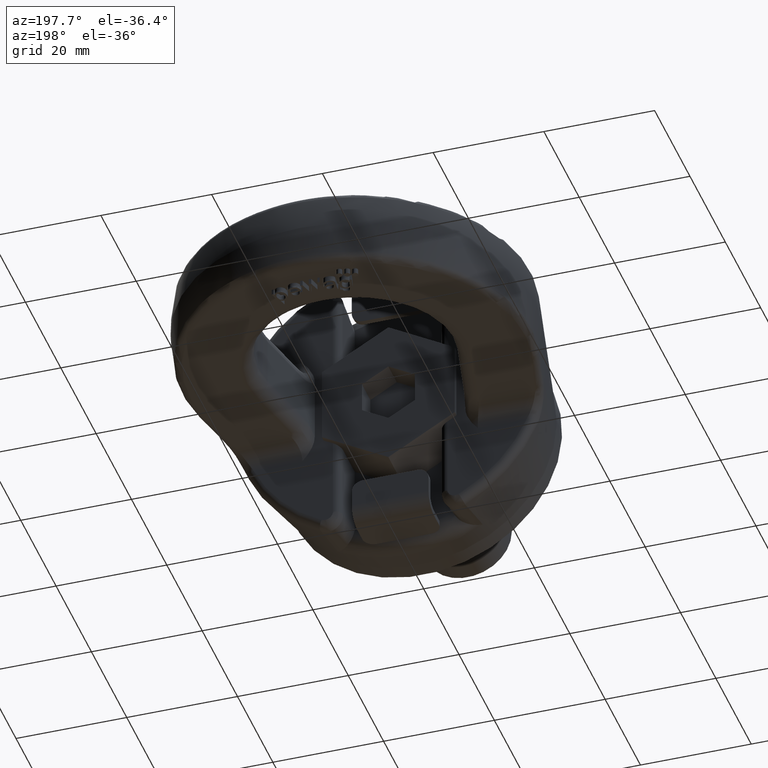
[diagram: clean part render]
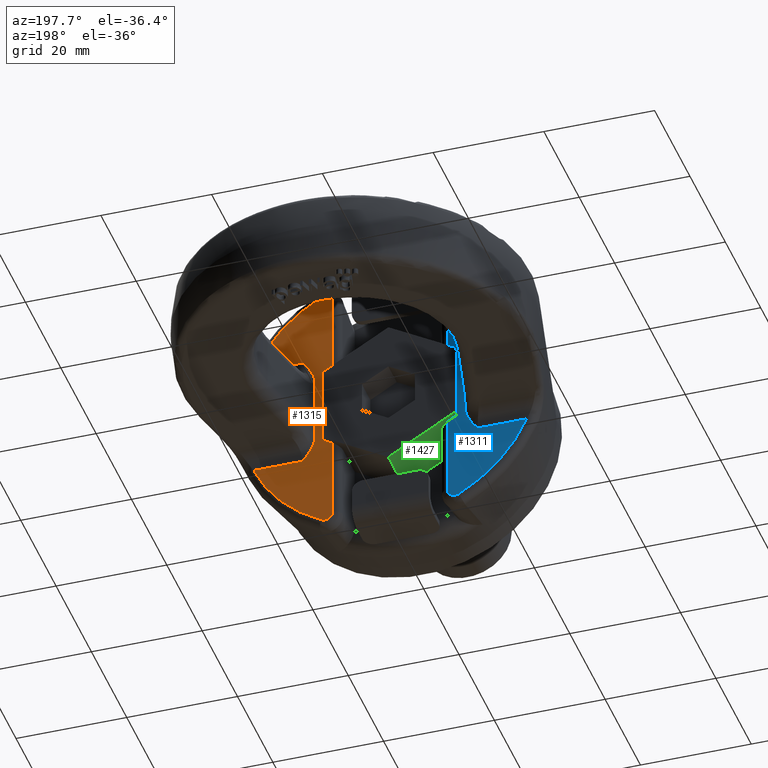
[diagram: same view with three faces highlighted in distinct colors, each labeled with its STEP entity id]
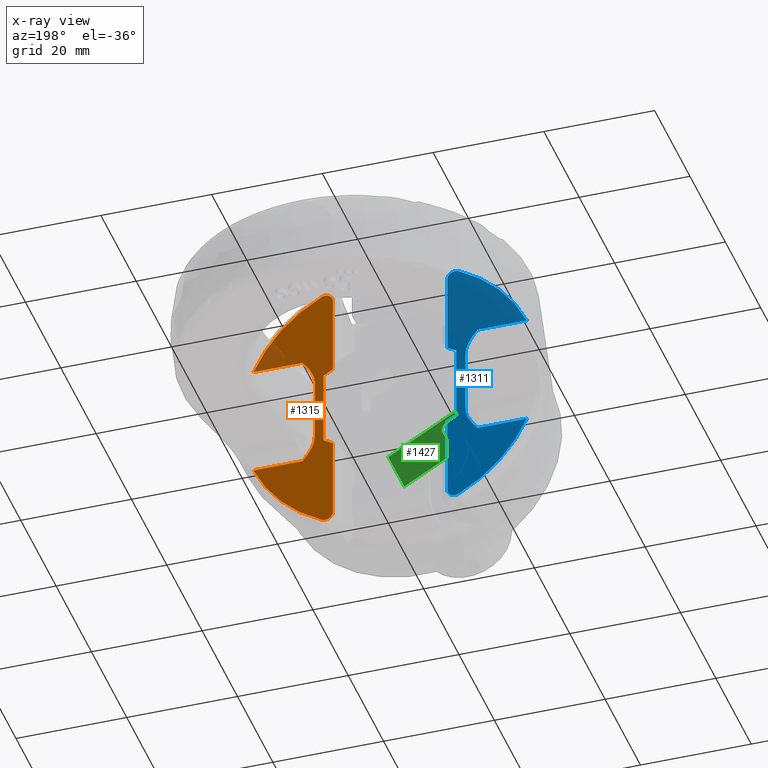
[diagram: x-ray of the same camera — body ghosted, the three highlighted faces saturated]
A machine part, auxiliary view with three faces highlighted in distinct colors.
The next image is the same camera in x-ray (body ghosted, the three faces saturated) — at least one of them is partly hidden behind the body in this view.
Their STEP definitions:

[orange] entity #1315 — the highlighted planar face has unit normal (0, 1, 0).
#1095=FACE_OUTER_BOUND('',#1827,.T.);
#1315=ADVANCED_FACE('',(#1095),#1554,.T.);
#1554=PLANE('',#5133);
#1674=CIRCLE('',#5131,26.8117324217931);
#1675=CIRCLE('',#5132,26.8117324217931);
#1827=EDGE_LOOP('',(#2796,#2797,#2798,#2799,#2800,#2801,#2802,#2803,#2804,
#2805,#2806,#2807,#2808,#2809));
#2141=LINE('',#6673,#2421);
#2142=LINE('',#6676,#2422);
#2143=LINE('',#6700,#2423);
#2144=LINE('',#6707,#2424);
#2145=LINE('',#6714,#2425);
#2146=LINE('',#6741,#2426);
#2147=LINE('',#6743,#2427);
#2148=LINE('',#6745,#2428);
#2421=VECTOR('',#5467,1.);
#2422=VECTOR('',#5468,1.);
#2423=VECTOR('',#5471,1.);
#2424=VECTOR('',#5472,1.);
#2425=VECTOR('',#5473,1.);
#2426=VECTOR('',#5476,1.);
#2427=VECTOR('',#5477,1.);
#2428=VECTOR('',#5478,1.);
#2796=ORIENTED_EDGE('',*,*,#4358,.T.);
#2797=ORIENTED_EDGE('',*,*,#4359,.T.);
#2798=ORIENTED_EDGE('',*,*,#4360,.T.);
#2799=ORIENTED_EDGE('',*,*,#4361,.T.);
#2800=ORIENTED_EDGE('',*,*,#4362,.T.);
#2801=ORIENTED_EDGE('',*,*,#4363,.T.);
#2802=ORIENTED_EDGE('',*,*,#4364,.F.);
#2803=ORIENTED_EDGE('',*,*,#4365,.T.);
#2804=ORIENTED_EDGE('',*,*,#4366,.T.);
#2805=ORIENTED_EDGE('',*,*,#4367,.T.);
#2806=ORIENTED_EDGE('',*,*,#4368,.T.);
#2807=ORIENTED_EDGE('',*,*,#4369,.T.);
#2808=ORIENTED_EDGE('',*,*,#4370,.T.);
#2809=ORIENTED_EDGE('',*,*,#4371,.T.);
#3968=VERTEX_POINT('',#6674);
#3969=VERTEX_POINT('',#6675);
#3970=VERTEX_POINT('',#6677);
#3971=VERTEX_POINT('',#6697);
#3972=VERTEX_POINT('',#6699);
#3973=VERTEX_POINT('',#6701);
#3974=VERTEX_POINT('',#6706);
#3975=VERTEX_POINT('',#6708);
#3976=VERTEX_POINT('',#6713);
#3977=VERTEX_POINT('',#6715);
#3978=VERTEX_POINT('',#6717);
#3979=VERTEX_POINT('',#6740);
#3980=VERTEX_POINT('',#6742);
#3981=VERTEX_POINT('',#6744);
#4358=EDGE_CURVE('',#3968,#3969,#2141,.T.);
#4359=EDGE_CURVE('',#3969,#3970,#2142,.T.);
#4360=EDGE_CURVE('',#3970,#3971,#4883,.T.);
#4361=EDGE_CURVE('',#3971,#3972,#1674,.T.);
#4362=EDGE_CURVE('',#3972,#3973,#2143,.T.);
#4363=EDGE_CURVE('',#3973,#3974,#4884,.T.);
#4364=EDGE_CURVE('',#3975,#3974,#2144,.T.);
#4365=EDGE_CURVE('',#3975,#3976,#4885,.T.);
#4366=EDGE_CURVE('',#3976,#3977,#2145,.T.);
#4367=EDGE_CURVE('',#3977,#3978,#1675,.T.);
#4368=EDGE_CURVE('',#3978,#3979,#4886,.T.);
#4369=EDGE_CURVE('',#3979,#3980,#2146,.T.);
#4370=EDGE_CURVE('',#3980,#3981,#2147,.T.);
#4371=EDGE_CURVE('',#3981,#3968,#2148,.T.);
#4883=B_SPLINE_CURVE_WITH_KNOTS('',3,(#6678,#6679,#6680,#6681,#6682,#6683,
#6684,#6685,#6686,#6687,#6688,#6689,#6690,#6691,#6692,#6693,#6694,#6695,
#6696),.UNSPECIFIED.,.F.,.F.,(4,3,3,3,3,3,4),(0.,0.172576338226563,0.34530578615506,
0.515492630800685,0.680616550204324,0.841230456372044,1.),.UNSPECIFIED.);
#4884=B_SPLINE_CURVE_WITH_KNOTS('',3,(#6702,#6703,#6704,#6705),
 .UNSPECIFIED.,.F.,.F.,(4,4),(0.,1.),.UNSPECIFIED.);
#4885=B_SPLINE_CURVE_WITH_KNOTS('',3,(#6709,#6710,#6711,#6712),
 .UNSPECIFIED.,.F.,.F.,(4,4),(0.,1.),.UNSPECIFIED.);
#4886=B_SPLINE_CURVE_WITH_KNOTS('',3,(#6718,#6719,#6720,#6721,#6722,#6723,
#6724,#6725,#6726,#6727,#6728,#6729,#6730,#6731,#6732,#6733,#6734,#6735,
#6736,#6737,#6738,#6739),.UNSPECIFIED.,.F.,.F.,(4,3,3,3,3,3,3,4),(0.,0.159578147992382,
0.319237140115818,0.477955555606193,0.638318110899253,0.802747033405713,
0.972066745451863,1.),.UNSPECIFIED.);
#5131=AXIS2_PLACEMENT_3D('',#6698,#5469,#5470);
#5132=AXIS2_PLACEMENT_3D('',#6716,#5474,#5475);
#5133=AXIS2_PLACEMENT_3D('',#6746,#5479,#5480);
#5467=DIRECTION('',(-0.866025403784442,0.,0.499999999999995));
#5468=DIRECTION('',(0.,0.,1.));
#5469=DIRECTION('',(0.,1.,0.));
#5470=DIRECTION('',(0.,0.,1.));
#5471=DIRECTION('',(-1.,0.,0.));
#5472=DIRECTION('',(0.,0.,1.));
#5473=DIRECTION('',(1.,0.,2.34291072916505E-15));
#5474=DIRECTION('',(0.,1.,0.));
#5475=DIRECTION('',(2.34291072916505E-15,0.,-1.));
#5476=DIRECTION('',(-2.34291072916505E-15,0.,1.));
#5477=DIRECTION('',(0.866025403784441,0.,0.499999999999997));
#5478=DIRECTION('',(0.,0.,1.));
#5479=DIRECTION('',(0.,1.,0.));
#5480=DIRECTION('',(0.,0.,1.));
#6673=CARTESIAN_POINT('',(-2.54079710660603,19.,15.3233363540061));
#6674=CARTESIAN_POINT('',(12.,19.,6.92820323027553));
#6675=CARTESIAN_POINT('',(10.335,19.,7.88949142847625));
#6676=CARTESIAN_POINT('',(10.335,19.,35.2));
#6677=CARTESIAN_POINT('',(10.335,19.,22.5013298116175));
#6678=CARTESIAN_POINT('',(10.335,19.,22.5013298116175));
#6679=CARTESIAN_POINT('',(10.3350000000005,19.,22.6666811603444));
#6680=CARTESIAN_POINT('',(10.3632945678757,19.,22.8343203734462));
#6681=CARTESIAN_POINT('',(10.4178298375874,19.,22.9904196139416));
#6682=CARTESIAN_POINT('',(10.4723919804875,19.,23.146595775012));
#6683=CARTESIAN_POINT('',(10.5548188108919,19.,23.2955983472526));
#6684=CARTESIAN_POINT('',(10.6587042223895,19.,23.4243455491737));
#6685=CARTESIAN_POINT('',(10.7610439749629,19.,23.5511771860626));
#6686=CARTESIAN_POINT('',(10.8872131059862,19.,23.6619452298316));
#6687=CARTESIAN_POINT('',(11.0266700188504,19.,23.7462746940009));
#6688=CARTESIAN_POINT('',(11.1620270317714,19.,23.828124952527));
#6689=CARTESIAN_POINT('',(11.3138002433287,19.,23.8873709767868));
#6690=CARTESIAN_POINT('',(11.468921602989,19.,23.918328197993));
#6691=CARTESIAN_POINT('',(11.6198946865275,19.,23.9484575570544));
#6692=CARTESIAN_POINT('',(11.7782655798895,19.,23.9526383954296));
#6693=CARTESIAN_POINT('',(11.9306122622062,19.,23.9304767479798));
#6694=CARTESIAN_POINT('',(12.0812826735348,19.,23.9085589452013));
#6695=CARTESIAN_POINT('',(12.2301787270023,19.,23.8603207381286));
#6696=CARTESIAN_POINT('',(12.3652759830031,19.,23.7901018350495));
#6697=CARTESIAN_POINT('',(12.365275983003,19.,23.790101835049));
#6698=CARTESIAN_POINT('',(-1.26850508220434E-13,19.,4.23289548145385E-14));
#6699=CARTESIAN_POINT('',(24.6702046091602,19.,10.5));
#6700=CARTESIAN_POINT('',(8.935,19.,10.5));
#6701=CARTESIAN_POINT('',(15.8378374688963,19.,10.5));
#6702=CARTESIAN_POINT('',(15.8378374688963,19.,10.5));
#6703=CARTESIAN_POINT('',(14.6425022701108,19.,9.16281866807006));
#6704=CARTESIAN_POINT('',(13.591977707196,19.,7.54366918195637));
#6705=CARTESIAN_POINT('',(13.591977707196,19.,5.7232785718454));
#6706=CARTESIAN_POINT('',(13.591977707196,19.,5.7232785718454));
#6707=CARTESIAN_POINT('',(13.591977707196,19.,35.2));
#6708=CARTESIAN_POINT('',(13.591977707196,19.,-5.72327857184538));
#6709=CARTESIAN_POINT('',(13.591977707196,19.,-5.72327857184538));
#6710=CARTESIAN_POINT('',(13.591977707196,19.,-7.54366918195635));
#6711=CARTESIAN_POINT('',(14.6425022701108,19.,-9.16281866807002));
#6712=CARTESIAN_POINT('',(15.8378374688964,19.,-10.5));
#6713=CARTESIAN_POINT('',(15.8378374688964,19.,-10.5));
#6714=CARTESIAN_POINT('',(13.5919777071961,19.,-10.5));
#6715=CARTESIAN_POINT('',(24.6702046091604,19.,-10.5));
#6716=CARTESIAN_POINT('',(1.26850508220434E-13,19.,-4.23289548145382E-14));
#6717=CARTESIAN_POINT('',(12.3652759830031,19.,-23.7901018350491));
#6718=CARTESIAN_POINT('',(12.3652759830031,19.,-23.7901018350491));
#6719=CARTESIAN_POINT('',(12.2296168522037,19.,-23.8606127813065));
#6720=CARTESIAN_POINT('',(12.0800332748858,19.,-23.9089581381187));
#6721=CARTESIAN_POINT('',(11.9287051988269,19.,-23.9307527867196));
#6722=CARTESIAN_POINT('',(11.7773263263964,19.,-23.9525547511411));
#6723=CARTESIAN_POINT('',(11.6200534029336,19.,-23.9483576348294));
#6724=CARTESIAN_POINT('',(11.4700450450729,19.,-23.9185519098277));
#6725=CARTESIAN_POINT('',(11.3208644257369,19.,-23.8889106513078));
#6726=CARTESIAN_POINT('',(11.1748169305774,19.,-23.8331827174294));
#6727=CARTESIAN_POINT('',(11.0435654482633,19.,-23.7563288965585));
#6728=CARTESIAN_POINT('',(10.9109301418148,19.,-23.6786647825748));
#6729=CARTESIAN_POINT('',(10.7898406676702,19.,-23.5774131087086));
#6730=CARTESIAN_POINT('',(10.6893793519034,19.,-23.4610887211024));
#6731=CARTESIAN_POINT('',(10.5863858426132,19.,-23.3418323008162));
#6732=CARTESIAN_POINT('',(10.5023044977849,19.,-23.2036073662965));
#6733=CARTESIAN_POINT('',(10.4431400945007,19.,-23.0575617223375));
#6734=CARTESIAN_POINT('',(10.3822409061197,19.,-22.9072338107898));
#6735=CARTESIAN_POINT('',(10.3460877471431,19.,-22.7445969705608));
#6736=CARTESIAN_POINT('',(10.3372235404915,19.,-22.5826444529016));
#6737=CARTESIAN_POINT('',(10.3357416625636,19.,-22.5555699643752));
#6738=CARTESIAN_POINT('',(10.3350000000001,19.,-22.5284448238956));
#6739=CARTESIAN_POINT('',(10.3350000000001,19.,-22.5013298116116));
#6740=CARTESIAN_POINT('',(10.3350000000001,19.,-22.5013298116116));
#6741=CARTESIAN_POINT('',(10.3350000000001,19.,-35.2));
#6742=CARTESIAN_POINT('',(10.335,19.,-7.88949142847622));
#6743=CARTESIAN_POINT('',(0.95193617379105,19.,-13.3068058543614));
#6744=CARTESIAN_POINT('',(12.,19.,-6.92820323027551));
#6745=CARTESIAN_POINT('',(12.,19.,35.2));
#6746=CARTESIAN_POINT('',(8.935,19.,35.2));

[blue] entity #1311 — the highlighted planar face has unit normal (0, 1, 0).
#1091=FACE_OUTER_BOUND('',#1823,.T.);
#1311=ADVANCED_FACE('',(#1091),#1550,.T.);
#1550=PLANE('',#5126);
#1671=CIRCLE('',#5124,26.8117324217931);
#1672=CIRCLE('',#5125,26.8117324217931);
#1823=EDGE_LOOP('',(#2767,#2768,#2769,#2770,#2771,#2772,#2773,#2774,#2775,
#2776,#2777,#2778,#2779,#2780));
#2125=LINE('',#6578,#2405);
#2126=LINE('',#6580,#2406);
#2127=LINE('',#6582,#2407);
#2128=LINE('',#6584,#2408);
#2129=LINE('',#6586,#2409);
#2130=LINE('',#6610,#2410);
#2131=LINE('',#6617,#2411);
#2132=LINE('',#6624,#2412);
#2405=VECTOR('',#5437,1.);
#2406=VECTOR('',#5438,1.);
#2407=VECTOR('',#5439,1.);
#2408=VECTOR('',#5440,1.);
#2409=VECTOR('',#5441,1.);
#2410=VECTOR('',#5444,1.);
#2411=VECTOR('',#5445,1.);
#2412=VECTOR('',#5446,1.);
#2767=ORIENTED_EDGE('',*,*,#4331,.T.);
#2768=ORIENTED_EDGE('',*,*,#4332,.T.);
#2769=ORIENTED_EDGE('',*,*,#4333,.T.);
#2770=ORIENTED_EDGE('',*,*,#4334,.T.);
#2771=ORIENTED_EDGE('',*,*,#4335,.T.);
#2772=ORIENTED_EDGE('',*,*,#4336,.T.);
#2773=ORIENTED_EDGE('',*,*,#4337,.T.);
#2774=ORIENTED_EDGE('',*,*,#4338,.T.);
#2775=ORIENTED_EDGE('',*,*,#4339,.T.);
#2776=ORIENTED_EDGE('',*,*,#4340,.T.);
#2777=ORIENTED_EDGE('',*,*,#4341,.T.);
#2778=ORIENTED_EDGE('',*,*,#4342,.T.);
#2779=ORIENTED_EDGE('',*,*,#4343,.T.);
#2780=ORIENTED_EDGE('',*,*,#4344,.T.);
#3943=VERTEX_POINT('',#6576);
#3944=VERTEX_POINT('',#6577);
#3945=VERTEX_POINT('',#6579);
#3946=VERTEX_POINT('',#6581);
#3947=VERTEX_POINT('',#6583);
#3948=VERTEX_POINT('',#6585);
#3949=VERTEX_POINT('',#6587);
#3950=VERTEX_POINT('',#6607);
#3951=VERTEX_POINT('',#6609);
#3952=VERTEX_POINT('',#6611);
#3953=VERTEX_POINT('',#6616);
#3954=VERTEX_POINT('',#6618);
#3955=VERTEX_POINT('',#6623);
#3956=VERTEX_POINT('',#6625);
#4331=EDGE_CURVE('',#3943,#3944,#4875,.T.);
#4332=EDGE_CURVE('',#3944,#3945,#2125,.T.);
#4333=EDGE_CURVE('',#3945,#3946,#2126,.T.);
#4334=EDGE_CURVE('',#3946,#3947,#2127,.T.);
#4335=EDGE_CURVE('',#3947,#3948,#2128,.T.);
#4336=EDGE_CURVE('',#3948,#3949,#2129,.T.);
#4337=EDGE_CURVE('',#3949,#3950,#4876,.T.);
#4338=EDGE_CURVE('',#3950,#3951,#1671,.T.);
#4339=EDGE_CURVE('',#3951,#3952,#2130,.T.);
#4340=EDGE_CURVE('',#3952,#3953,#4877,.T.);
#4341=EDGE_CURVE('',#3953,#3954,#2131,.T.);
#4342=EDGE_CURVE('',#3954,#3955,#4878,.T.);
#4343=EDGE_CURVE('',#3955,#3956,#2132,.T.);
#4344=EDGE_CURVE('',#3956,#3943,#1672,.T.);
#4875=B_SPLINE_CURVE_WITH_KNOTS('',3,(#6554,#6555,#6556,#6557,#6558,#6559,
#6560,#6561,#6562,#6563,#6564,#6565,#6566,#6567,#6568,#6569,#6570,#6571,
#6572,#6573,#6574,#6575),.UNSPECIFIED.,.F.,.F.,(4,3,3,3,3,3,3,4),(0.,0.159578147992382,
0.319237140115818,0.477955555606194,0.638318110899253,0.802747033405713,
0.972066745451863,1.),.UNSPECIFIED.);
#4876=B_SPLINE_CURVE_WITH_KNOTS('',3,(#6588,#6589,#6590,#6591,#6592,#6593,
#6594,#6595,#6596,#6597,#6598,#6599,#6600,#6601,#6602,#6603,#6604,#6605,
#6606),.UNSPECIFIED.,.F.,.F.,(4,3,3,3,3,3,4),(0.,0.172576338226563,0.34530578615506,
0.515492630800685,0.680616550204324,0.841230456372044,1.),.UNSPECIFIED.);
#4877=B_SPLINE_CURVE_WITH_KNOTS('',3,(#6612,#6613,#6614,#6615),
 .UNSPECIFIED.,.F.,.F.,(4,4),(0.,1.),.UNSPECIFIED.);
#4878=B_SPLINE_CURVE_WITH_KNOTS('',3,(#6619,#6620,#6621,#6622),
 .UNSPECIFIED.,.F.,.F.,(4,4),(0.,1.),.UNSPECIFIED.);
#5124=AXIS2_PLACEMENT_3D('',#6608,#5442,#5443);
#5125=AXIS2_PLACEMENT_3D('',#6626,#5447,#5448);
#5126=AXIS2_PLACEMENT_3D('',#6627,#5449,#5450);
#5437=DIRECTION('',(0.,0.,-1.));
#5438=DIRECTION('',(-0.866025403784442,0.,-0.499999999999995));
#5439=DIRECTION('',(0.,0.,-1.));
#5440=DIRECTION('',(0.866025403784443,0.,-0.499999999999992));
#5441=DIRECTION('',(2.34291072916505E-15,0.,-1.));
#5442=DIRECTION('',(0.,1.,0.));
#5443=DIRECTION('',(2.34291072916505E-15,0.,-1.));
#5444=DIRECTION('',(1.,0.,2.34291072916505E-15));
#5445=DIRECTION('',(0.,0.,1.));
#5446=DIRECTION('',(-1.,0.,0.));
#5447=DIRECTION('',(0.,1.,0.));
#5448=DIRECTION('',(0.,0.,1.));
#5449=DIRECTION('',(0.,1.,0.));
#5450=DIRECTION('',(0.,0.,1.));
#6554=CARTESIAN_POINT('',(-12.365275983003,19.,23.7901018350491));
#6555=CARTESIAN_POINT('',(-12.2296168522037,19.,23.8606127813065));
#6556=CARTESIAN_POINT('',(-12.0800332748858,19.,23.9089581381187));
#6557=CARTESIAN_POINT('',(-11.9287051988268,19.,23.9307527867196));
#6558=CARTESIAN_POINT('',(-11.7773263263964,19.,23.9525547511411));
#6559=CARTESIAN_POINT('',(-11.6200534029336,19.,23.9483576348294));
#6560=CARTESIAN_POINT('',(-11.4700450450728,19.,23.9185519098278));
#6561=CARTESIAN_POINT('',(-11.3208644257368,19.,23.8889106513078));
#6562=CARTESIAN_POINT('',(-11.1748169305774,19.,23.8331827174294));
#6563=CARTESIAN_POINT('',(-11.0435654482633,19.,23.7563288965585));
#6564=CARTESIAN_POINT('',(-10.9109301418148,19.,23.6786647825749));
#6565=CARTESIAN_POINT('',(-10.7898406676702,19.,23.5774131087086));
#6566=CARTESIAN_POINT('',(-10.6893793519034,19.,23.4610887211025));
#6567=CARTESIAN_POINT('',(-10.5863858426132,19.,23.3418323008162));
#6568=CARTESIAN_POINT('',(-10.5023044977849,19.,23.2036073662965));
#6569=CARTESIAN_POINT('',(-10.4431400945006,19.,23.0575617223375));
#6570=CARTESIAN_POINT('',(-10.3822409061197,19.,22.9072338107898));
#6571=CARTESIAN_POINT('',(-10.3460877471431,19.,22.7445969705609));
#6572=CARTESIAN_POINT('',(-10.3372235404914,19.,22.5826444529016));
#6573=CARTESIAN_POINT('',(-10.3357416625635,19.,22.5555699643752));
#6574=CARTESIAN_POINT('',(-10.335,19.,22.5284448238956));
#6575=CARTESIAN_POINT('',(-10.335,19.,22.5013298116116));
#6576=CARTESIAN_POINT('',(-12.365275983003,19.,23.7901018350491));
#6577=CARTESIAN_POINT('',(-10.335,19.,22.5013298116116));
#6578=CARTESIAN_POINT('',(-10.335,19.,35.2));
#6579=CARTESIAN_POINT('',(-10.335,19.,7.88949142847624));
#6580=CARTESIAN_POINT('',(-0.951936173791018,19.,13.3068058543614));
#6581=CARTESIAN_POINT('',(-12.,19.,6.92820323027554));
#6582=CARTESIAN_POINT('',(-12.,19.,35.2));
#6583=CARTESIAN_POINT('',(-12.,19.,-6.92820323027556));
#6584=CARTESIAN_POINT('',(2.54079710660607,19.,-15.3233363540061));
#6585=CARTESIAN_POINT('',(-10.335,19.,-7.88949142847627));
#6586=CARTESIAN_POINT('',(-10.3349999999999,19.,-35.2));
#6587=CARTESIAN_POINT('',(-10.3349999999999,19.,-22.5013298116176));
#6588=CARTESIAN_POINT('',(-10.3349999999999,19.,-22.5013298116176));
#6589=CARTESIAN_POINT('',(-10.3350000000005,19.,-22.6666811603444));
#6590=CARTESIAN_POINT('',(-10.3632945678756,19.,-22.8343203734462));
#6591=CARTESIAN_POINT('',(-10.4178298375873,19.,-22.9904196139417));
#6592=CARTESIAN_POINT('',(-10.4723919804875,19.,-23.146595775012));
#6593=CARTESIAN_POINT('',(-10.5548188108919,19.,-23.2955983472526));
#6594=CARTESIAN_POINT('',(-10.6587042223894,19.,-23.4243455491737));
#6595=CARTESIAN_POINT('',(-10.7610439749628,19.,-23.5511771860626));
#6596=CARTESIAN_POINT('',(-10.8872131059861,19.,-23.6619452298316));
#6597=CARTESIAN_POINT('',(-11.0266700188504,19.,-23.746274694001));
#6598=CARTESIAN_POINT('',(-11.1620270317713,19.,-23.8281249525271));
#6599=CARTESIAN_POINT('',(-11.3138002433286,19.,-23.8873709767868));
#6600=CARTESIAN_POINT('',(-11.4689216029889,19.,-23.9183281979931));
#6601=CARTESIAN_POINT('',(-11.6198946865274,19.,-23.9484575570544));
#6602=CARTESIAN_POINT('',(-11.7782655798895,19.,-23.9526383954296));
#6603=CARTESIAN_POINT('',(-11.9306122622061,19.,-23.9304767479798));
#6604=CARTESIAN_POINT('',(-12.0812826735348,19.,-23.9085589452013));
#6605=CARTESIAN_POINT('',(-12.2301787270022,19.,-23.8603207381286));
#6606=CARTESIAN_POINT('',(-12.365275983003,19.,-23.7901018350495));
#6607=CARTESIAN_POINT('',(-12.365275983003,19.,-23.790101835049));
#6608=CARTESIAN_POINT('',(1.26850508220434E-13,19.,-4.23289548145382E-14));
#6609=CARTESIAN_POINT('',(-24.6702046091602,19.,-10.5000000000001));
#6610=CARTESIAN_POINT('',(-8.93499999999997,19.,-10.5));
#6611=CARTESIAN_POINT('',(-15.8378374688963,19.,-10.5));
#6612=CARTESIAN_POINT('',(-15.8378374688963,19.,-10.5));
#6613=CARTESIAN_POINT('',(-14.6425022701108,19.,-9.16281866807009));
#6614=CARTESIAN_POINT('',(-13.591977707196,19.,-7.5436691819564));
#6615=CARTESIAN_POINT('',(-13.591977707196,19.,-5.72327857184543));
#6616=CARTESIAN_POINT('',(-13.591977707196,19.,-5.72327857184543));
#6617=CARTESIAN_POINT('',(-13.591977707196,19.,35.2));
#6618=CARTESIAN_POINT('',(-13.591977707196,19.,5.72327857184541));
#6619=CARTESIAN_POINT('',(-13.591977707196,19.,5.72327857184541));
#6620=CARTESIAN_POINT('',(-13.591977707196,19.,7.54366918195638));
#6621=CARTESIAN_POINT('',(-14.6425022701108,19.,9.16281866807006));
#6622=CARTESIAN_POINT('',(-15.8378374688963,19.,10.5));
#6623=CARTESIAN_POINT('',(-15.8378374688963,19.,10.5));
#6624=CARTESIAN_POINT('',(-13.591977707196,19.,10.5));
#6625=CARTESIAN_POINT('',(-24.6702046091604,19.,10.5));
#6626=CARTESIAN_POINT('',(-1.26850508220434E-13,19.,4.23289548145385E-14));
#6627=CARTESIAN_POINT('',(-13.591977707196,19.,35.2));

[green] entity #1427 — the highlighted planar face has unit normal (0.5, 0, 0.866).
#1052=ELLIPSE('',#5254,1.61658075373095,1.4);
#1195=FACE_OUTER_BOUND('',#1958,.T.);
#1427=ADVANCED_FACE('',(#1195),#1609,.F.);
#1609=PLANE('',#5255);
#1958=EDGE_LOOP('',(#3341,#3342,#3343,#3344,#3345,#3346,#3347));
#2115=LINE('',#6534,#2395);
#2128=LINE('',#6584,#2408);
#2159=LINE('',#6899,#2439);
#2257=LINE('',#8379,#2565);
#2260=LINE('',#8393,#2568);
#2261=LINE('',#8396,#2569);
#2395=VECTOR('',#5425,1.);
#2408=VECTOR('',#5440,1.);
#2439=VECTOR('',#5553,1.);
#2565=VECTOR('',#5853,1.);
#2568=VECTOR('',#5858,1.);
#2569=VECTOR('',#5863,1.);
#3341=ORIENTED_EDGE('',*,*,#4631,.F.);
#3342=ORIENTED_EDGE('',*,*,#4635,.F.);
#3343=ORIENTED_EDGE('',*,*,#4636,.T.);
#3344=ORIENTED_EDGE('',*,*,#4335,.F.);
#3345=ORIENTED_EDGE('',*,*,#4415,.T.);
#3346=ORIENTED_EDGE('',*,*,#4321,.T.);
#3347=ORIENTED_EDGE('',*,*,#4637,.F.);
#3933=VERTEX_POINT('',#6533);
#3934=VERTEX_POINT('',#6535);
#3947=VERTEX_POINT('',#6583);
#3948=VERTEX_POINT('',#6585);
#4147=VERTEX_POINT('',#8378);
#4148=VERTEX_POINT('',#8380);
#4150=VERTEX_POINT('',#8392);
#4321=EDGE_CURVE('',#3934,#3933,#2115,.T.);
#4335=EDGE_CURVE('',#3947,#3948,#2128,.T.);
#4415=EDGE_CURVE('',#3947,#3934,#2159,.T.);
#4631=EDGE_CURVE('',#4147,#4148,#2257,.T.);
#4635=EDGE_CURVE('',#4150,#4147,#2260,.T.);
#4636=EDGE_CURVE('',#4150,#3948,#1052,.T.);
#4637=EDGE_CURVE('',#4148,#3933,#2261,.T.);
#5254=AXIS2_PLACEMENT_3D('',#8395,#5861,#5862);
#5255=AXIS2_PLACEMENT_3D('',#8397,#5864,#5865);
#5425=DIRECTION('',(0.866025403784443,0.,-0.499999999999992));
#5440=DIRECTION('',(0.866025403784443,0.,-0.499999999999992));
#5553=DIRECTION('',(0.,1.,0.));
#5853=DIRECTION('',(0.866025403784443,-8.40690877860753E-17,-0.499999999999992));
#5858=DIRECTION('',(0.,-1.,0.));
#5861=DIRECTION('',(0.499999999999992,0.,0.866025403784443));
#5862=DIRECTION('',(0.866025403784443,0.,-0.499999999999992));
#5863=DIRECTION('',(0.,1.,0.));
#5864=DIRECTION('',(0.499999999999992,0.,0.866025403784443));
#5865=DIRECTION('',(0.866025403784443,0.,-0.499999999999992));
#6533=CARTESIAN_POINT('',(3.24643233640967E-14,20.,-13.8564064605509));
#6534=CARTESIAN_POINT('',(-12.,20.,-6.92820323027556));
#6535=CARTESIAN_POINT('',(-12.,20.,-6.92820323027556));
#6583=CARTESIAN_POINT('',(-12.,19.,-6.92820323027556));
#6584=CARTESIAN_POINT('',(2.54079710660607,19.,-15.3233363540061));
#6585=CARTESIAN_POINT('',(-10.335,19.,-7.88949142847627));
#6899=CARTESIAN_POINT('',(-12.,1.3,-6.92820323027556));
#8378=CARTESIAN_POINT('',(-8.93499999999998,11.,-8.69778180534173));
#8379=CARTESIAN_POINT('',(15.9432971066062,11.,-23.06127333682));
#8380=CARTESIAN_POINT('',(3.24643233640967E-14,11.,-13.8564064605509));
#8392=CARTESIAN_POINT('',(-8.93499999999998,17.6,-8.69778180534173));
#8393=CARTESIAN_POINT('',(-8.93499999999998,11.,-8.69778180534173));
#8395=CARTESIAN_POINT('',(-10.335,17.6,-7.88949142847627));
#8396=CARTESIAN_POINT('',(3.24643233640967E-14,1.3,-13.8564064605509));
#8397=CARTESIAN_POINT('',(-12.,1.3,-6.92820323027556));